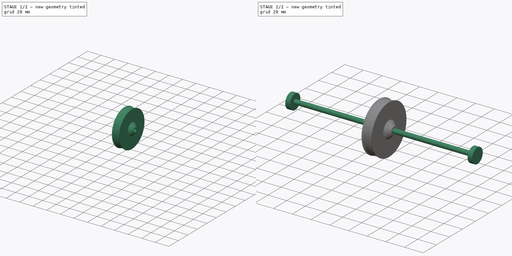
[diagram: build sequence overview — one tinted view per stage of 2, left to right]
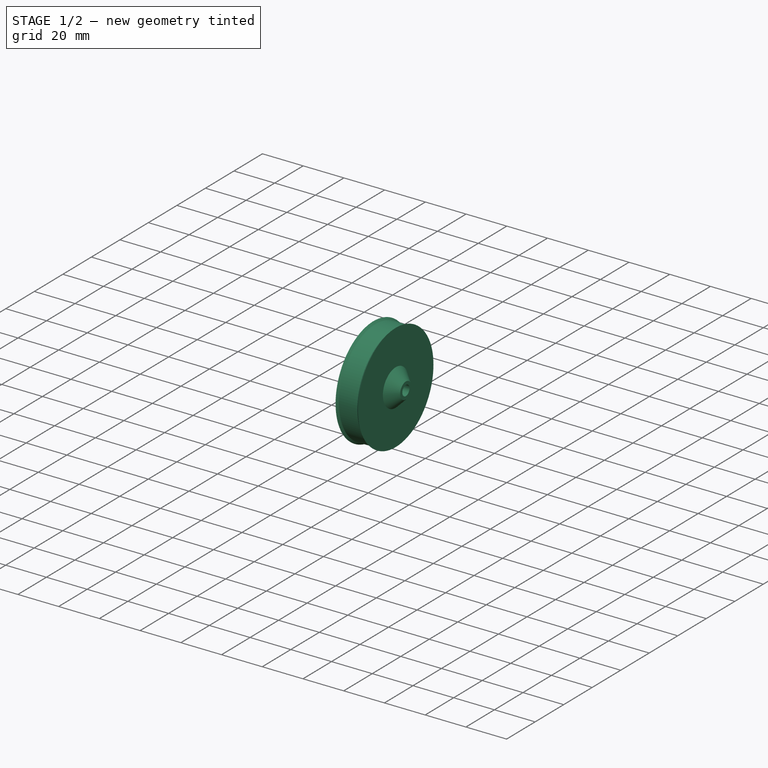
[diagram: stage 1 of 2 — iso view after this stage's code; geometry added in this stage tinted green]
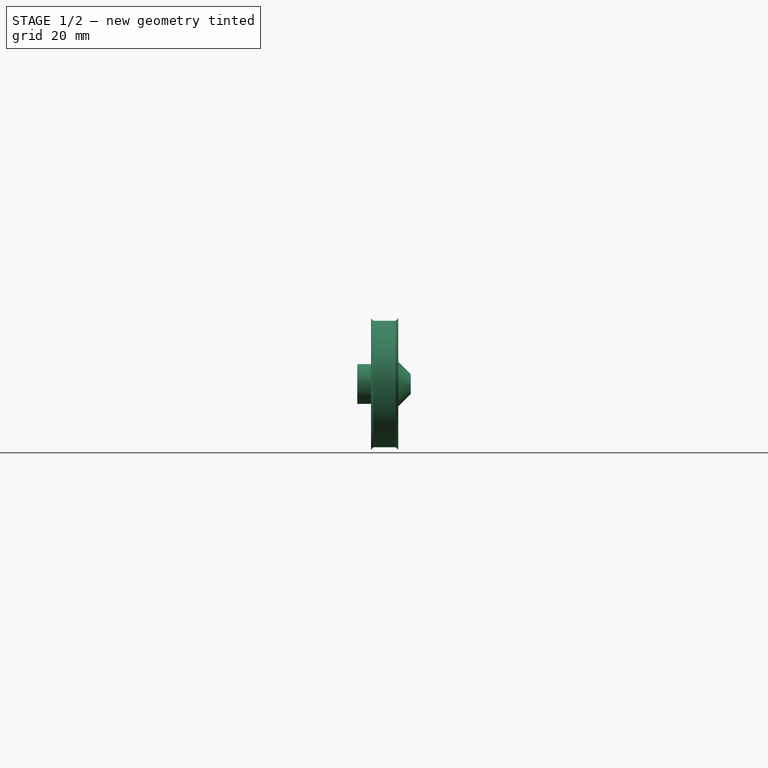
[diagram: stage 1 of 2 — front view after this stage's code; geometry added in this stage tinted green]
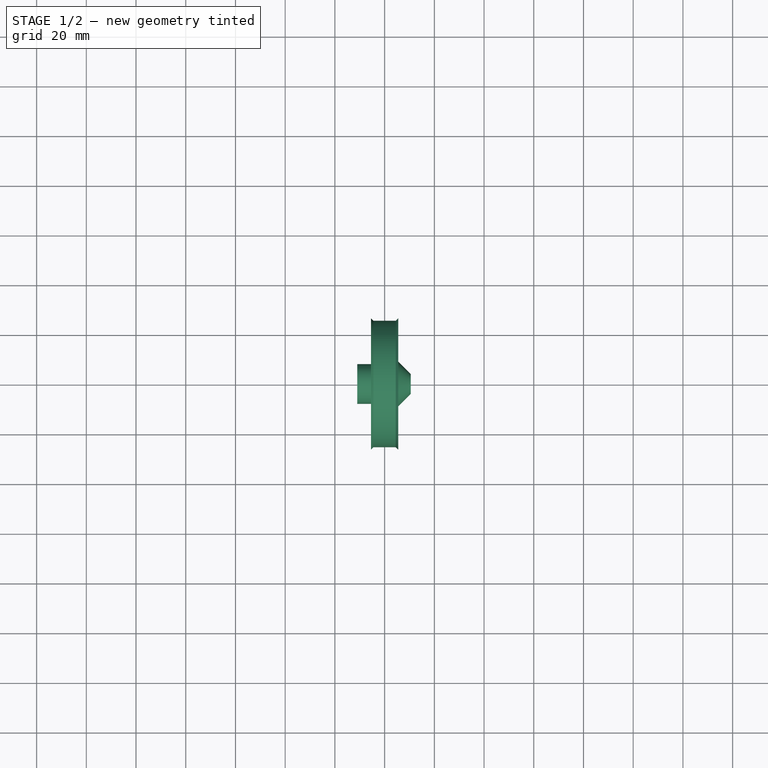
[diagram: stage 1 of 2 — top view after this stage's code; geometry added in this stage tinted green]
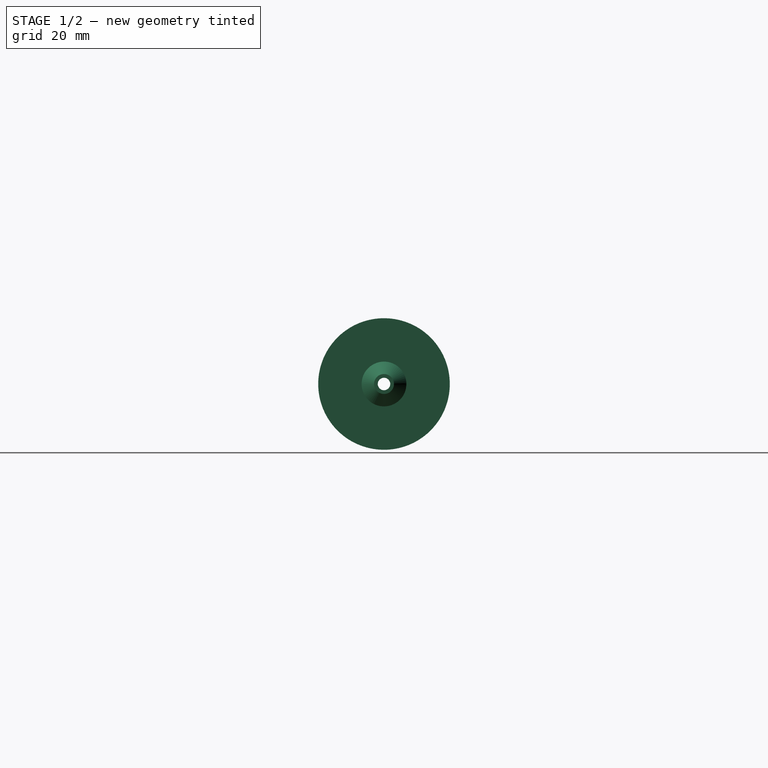
[diagram: stage 1 of 2 — right view after this stage's code; geometry added in this stage tinted green]
FCSTD DOCUMENT  (FreeCAD 0.20R29177 (Git))
Label: miniXY-ZDrive
License: All rights reserved
LicenseURL: http://en.wikipedia.org/wiki/All_rights_reserved
objects: App::Part×4, App::Link×4, App::DocumentObjectGroup×3, Sketcher::SketchObject×3, PartDesign::Revolution×3, PartDesign::Body×3, PartDesign::CoordinateSystem×1, App::FeaturePython×1
note: 13 computed .brp shape members not serialized (recipe doc carries the construction recipe); baked Part::Feature solids carry a one-line shape summary decoded from their .brp

FEATURE [PartDesign::CoordinateSystem] LCS_Origin
  AttacherType = Attacher::AttachEngine3D
  MapMode = 2
  Support = -> [X_Axis]
FEATURE [App::DocumentObjectGroup] Constraints
FEATURE [App::FeaturePython] Variables  # WARN: FeaturePython — macro-defined, semantics opaque (R4)
  DriveShaftLength = 200
  Pully80TPosition = 60
  PullyDriveDiameter = 12.73
  PullyDrivePosition = 83.5
  Type = App::PropertyContainer
FEATURE [App::DocumentObjectGroup] Configurations
FEATURE [Sketcher::SketchObject] Sketch
  FullyConstrained = true
  MapMode = 5
  Support = -> [XY_Plane004]
  expr: Constraints[21] = -50.93 / 2
  sketch-geometry (10):
    g0: LineSegment StartX=-11 StartY=-2.5 StartZ=0 EndX=-11 EndY=-8 EndZ=0
    g1: LineSegment StartX=-11 StartY=-8 StartZ=0 EndX=-5.5 EndY=-8 EndZ=0
    g2: LineSegment StartX=-5.5 StartY=-8 StartZ=0 EndX=-5.5 EndY=-26.465 EndZ=0
    g3: LineSegment StartX=-5.5 StartY=-26.465 StartZ=0 EndX=-4.5 EndY=-25.465 EndZ=0
    g4: LineSegment StartX=-4.5 StartY=-25.465 StartZ=0 EndX=4.5 EndY=-25.465 EndZ=0
    g5: LineSegment StartX=4.5 StartY=-25.465 StartZ=0 EndX=5.5 EndY=-26.465 EndZ=0
    g6: LineSegment StartX=5.5 StartY=-26.465 StartZ=0 EndX=5.5 EndY=-9 EndZ=0
    g7: LineSegment StartX=5.5 StartY=-9 StartZ=0 EndX=10.5 EndY=-4 EndZ=0
    g8: LineSegment StartX=10.5 StartY=-4 StartZ=0 EndX=10.5 EndY=-2.5 EndZ=0
    g9: LineSegment StartX=10.5 StartY=-2.5 StartZ=0 EndX=-11 EndY=-2.5 EndZ=0
  constraints (28):
    c: Vertical(g0)
    c: Coincident(g0,g1)
    c: Coincident(g1,g2)
    c: Vertical(g2)
    c: Coincident(g2,g3)
    c: Coincident(g3,g4)
    c: Coincident(g4,g5)
    c: Coincident(g5,g6)
    c: Coincident(g6,g7)
    c: Coincident(g7,g8)
    c: Coincident(g8,g9)
    c: Coincident(g9,g0)
    c: Horizontal(g9)
    c: Angle(g3) = 0.785398
    c: Parallel(g3,g7)
    c: Vertical(g6)
    c: Vertical(g8)
    c: Symmetric(g3,g4,g-2)
    c: DistanceX(g4,g4) = 9
    c: Symmetric(g2,g5,g-2)
    c: DistanceX(g2,g3) = 1
    c: DistanceY(g3) = -25.465
    c: Horizontal(g1)
    c: DistanceY(g0) = -2.5
    c: DistanceX(g1,g1) = 5.5
    c: DistanceY(g0) = -8
    c: DistanceX(g7,g7) = 5
    c: DistanceY(g8,g8) = 1.5
FEATURE [PartDesign::Revolution] Revolution
  Angle = 360
  Axis = (1,0,0)
  Base = (0,0,0)
  Profile = -> Sketch
  ReferenceAxis = -> Sketch [H_Axis]
  Reversed = true
FEATURE [PartDesign::Body] Body002  label="Pully80TBody"
  Group = -> [Sketch,Revolution]
  Origin = -> Origin004
  Tip = -> Revolution
FEATURE [App::Part] Part001  label="Pully80T"
  Group = -> [Body002]
  Origin = -> Origin005
FEATURE [Sketcher::SketchObject] Sketch118
  FullyConstrained = true
  MapMode = 5
  Support = -> [XY_Plane003]
  expr: Constraints[18] = -<<Variables>>.PullyDriveDiameter / 2
  sketch-geometry (8):
    g0: LineSegment StartX=-11 StartY=-2.5 StartZ=0 EndX=-11 EndY=-8 EndZ=0
    g1: LineSegment StartX=-11 StartY=-8 StartZ=0 EndX=-3.5 EndY=-8 EndZ=0
    g2: LineSegment StartX=-3.5 StartY=-8 StartZ=0 EndX=-3.5 EndY=-6.365 EndZ=0
    g3: LineSegment StartX=-3.5 StartY=-6.365 StartZ=0 EndX=3.5 EndY=-6.365 EndZ=0
    g4: LineSegment StartX=3.5 StartY=-6.365 StartZ=0 EndX=3.5 EndY=-8 EndZ=0
    g5: LineSegment StartX=3.5 StartY=-8 StartZ=0 EndX=5 EndY=-8 EndZ=0
    g6: LineSegment StartX=5 StartY=-8 StartZ=0 EndX=5 EndY=-2.5 EndZ=0
    g7: LineSegment StartX=5 StartY=-2.5 StartZ=0 EndX=-11 EndY=-2.5 EndZ=0
  constraints (23):
    c: Vertical(g0)
    c: Coincident(g0,g1)
    c: Horizontal(g1)
    c: Coincident(g1,g2)
    c: Coincident(g2,g3)
    c: Coincident(g3,g4)
    c: Vertical(g4)
    c: Coincident(g4,g5)
    c: Coincident(g5,g6)
    c: Vertical(g6)
    c: Coincident(g6,g7)
    c: Coincident(g7,g0)
    c: Horizontal(g7)
    c: Symmetric(g2,g3,g-2)
    c: Vertical(g2)
    c: DistanceX(g7,g7) = 16
    c: DistanceY(g0) = -2.5
    c: DistanceY(g0) = -8
    c: DistanceY(g2) = -6.365
    c: DistanceX(g5,g5) = 1.5
    c: DistanceX(g1,g1) = 7.5
    c: Horizontal(g5)
    c: DistanceY(g5) = -8
FEATURE [PartDesign::Revolution] Revolution001
  Angle = 360
  Axis = (1,0,0)
  Base = (0,0,0)
  Profile = -> Sketch118
  ReferenceAxis = -> Sketch118 [H_Axis]
  Reversed = true
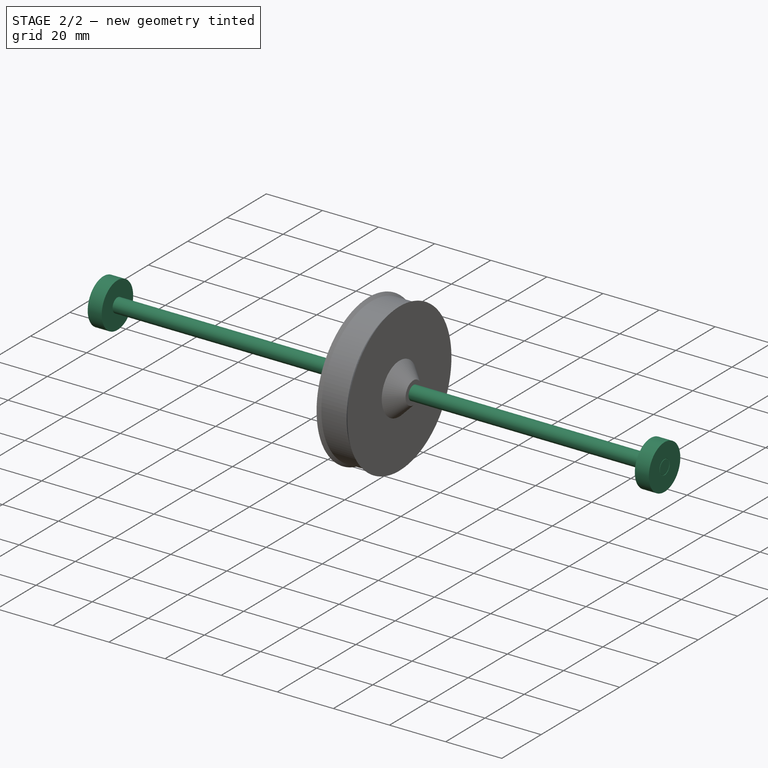
[diagram: stage 2 of 2 — iso view after this stage's code; geometry added in this stage tinted green]
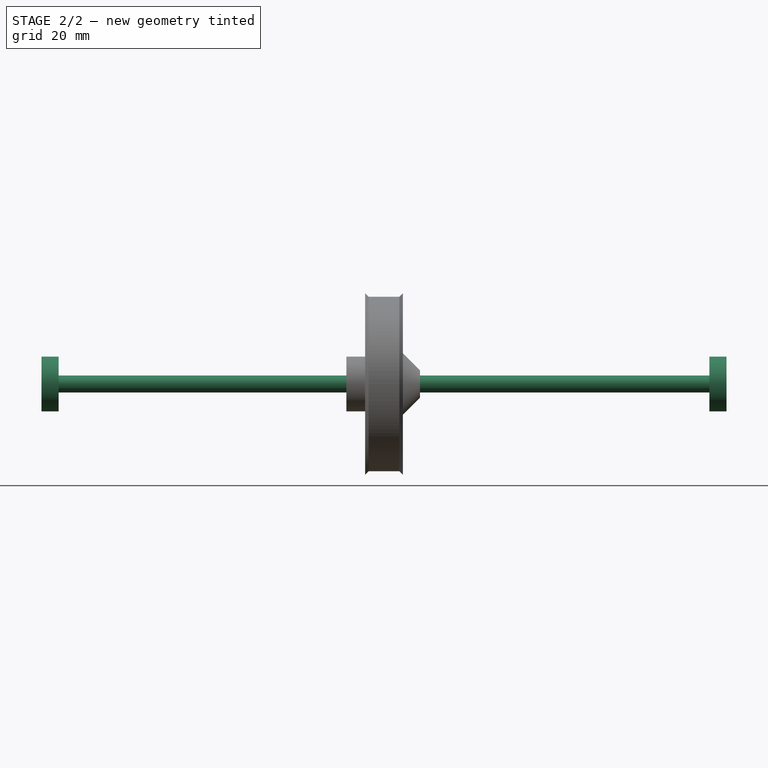
[diagram: stage 2 of 2 — front view after this stage's code; geometry added in this stage tinted green]
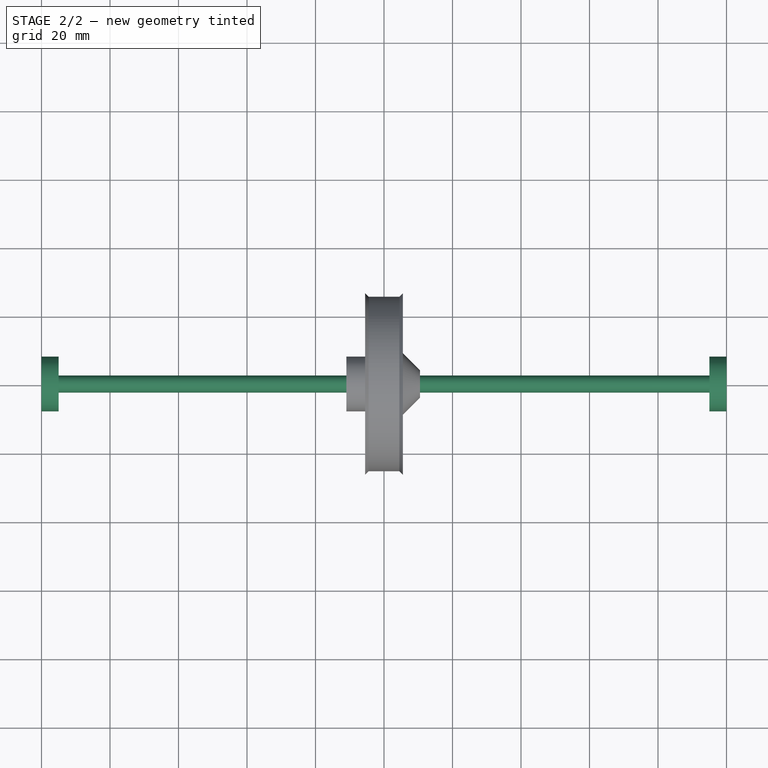
[diagram: stage 2 of 2 — top view after this stage's code; geometry added in this stage tinted green]
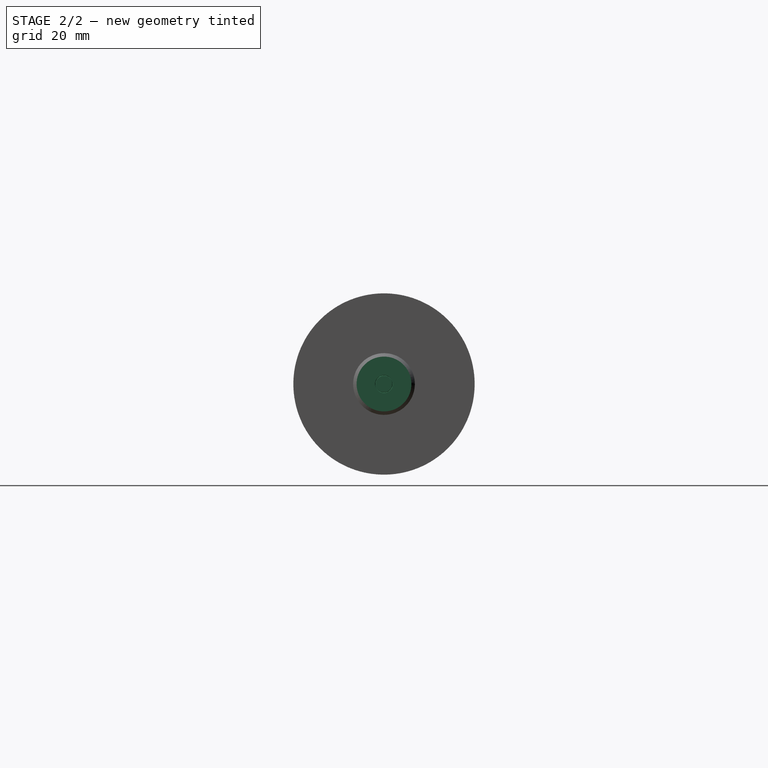
[diagram: stage 2 of 2 — right view after this stage's code; geometry added in this stage tinted green]
FEATURE [PartDesign::Body] Body001  label="PullyDriveBody"
  Group = -> [Sketch118,Revolution001]
  Origin = -> Origin003
  Tip = -> Revolution001
FEATURE [App::Part] Part002  label="PullyDrive"
  Group = -> [Body001]
  Origin = -> Origin006
FEATURE [Sketcher::SketchObject] Sketch119
  FullyConstrained = true
  MapMode = 5
  Support = -> [XY_Plane002]
  expr: Constraints[13] = <<Variables>>.DriveShaftLength
  sketch-geometry (16):
    g0: LineSegment StartX=-100 StartY=-8 StartZ=0 EndX=-95 EndY=-8 EndZ=0
    g1: LineSegment StartX=-95 StartY=-8 StartZ=0 EndX=-95 EndY=-2.5 EndZ=0
    g2: LineSegment StartX=-95 StartY=-2.5 StartZ=0 EndX=95 EndY=-2.5 EndZ=0
    g3: LineSegment StartX=95 StartY=-2.5 StartZ=0 EndX=95 EndY=-8 EndZ=0
    g4: LineSegment StartX=95 StartY=-8 StartZ=0 EndX=100 EndY=-8 EndZ=0
    g5: LineSegment StartX=100 StartY=0 StartZ=0 EndX=-100 EndY=0 EndZ=0
    g6: LineSegment StartX=-100 StartY=-3.5 StartZ=0 EndX=100 EndY=-3.5 EndZ=0
    g7: LineSegment StartX=-100 StartY=-7 StartZ=0 EndX=100 EndY=-7 EndZ=0
    g8: LineSegment StartX=-100 StartY=0 StartZ=0 EndX=-100 EndY=-2.4 EndZ=0
    g9: LineSegment StartX=-100 StartY=-2.4 StartZ=0 EndX=-99.9 EndY=-2.5 EndZ=0
    g10: LineSegment StartX=-99.9 StartY=-2.5 StartZ=0 EndX=-100 EndY=-2.6 EndZ=0
    g11: LineSegment StartX=99.9 StartY=-2.5 StartZ=0 EndX=100 EndY=-2.4 EndZ=0
    g12: LineSegment StartX=100 StartY=-2.4 StartZ=0 EndX=100 EndY=0 EndZ=0
    g13: LineSegment StartX=100 StartY=-8 StartZ=0 EndX=100 EndY=-2.6 EndZ=0
    g14: LineSegment StartX=100 StartY=-2.6 StartZ=0 EndX=99.9 EndY=-2.5 EndZ=0
    g15: LineSegment StartX=-100 StartY=-2.6 StartZ=0 EndX=-100 EndY=-8 EndZ=0
  constraints (40):
    c: Coincident(g0,g1)
    c: Vertical(g1)
    c: Coincident(g1,g2)
    c: Coincident(g2,g3)
    c: Coincident(g3,g4)
    c: Coincident(g4,g13)
    c: Coincident(g12,g5)
    c: Horizontal(g0)
    c: Symmetric(g5,g12,g-2)
    c: Symmetric(g1,g2,g-2)
    c: Symmetric(g0,g3,g-2)
    c: Symmetric(g0,g4,g-2)
    c: PointOnObject(g5,g-1)
    c: DistanceX(g5,g5) = 200
    c: DistanceY(g0) = -8
    c: DistanceY(g1) = -2.5
    c: DistanceX(g0,g0) = 5
    c: Coincident(g8,g5)
    c: Symmetric(g6,g6,g-2)
    c: Symmetric(g7,g7,g-2)
    c: DistanceY(g6,g1) = 1
    c: Coincident(g9,g10)
    c: Coincident(g8,g9)
    c: Vertical(g8)
    c: Coincident(g10,g15)
    c: PointOnObject(g9,g2)
    c: Symmetric(g8,g10,g2)
    c: Angle(g9) = -0.785398
    c: DistanceY(g10,g8) = 0.2
    c: DistanceY(g0,g7) = 1
    c: Coincident(g14,g11)
    c: Coincident(g11,g12)
    c: Coincident(g13,g14)
    c: Symmetric(g11,g9,g-2)
    c: Symmetric(g8,g11,g-2)
    c: Symmetric(g13,g10,g-2)
    c: Vertical(g15)
    c: PointOnObject(g6,g8)
    c: PointOnObject(g7,g8)
    c: Coincident(g15,g0)
FEATURE [PartDesign::Revolution] Revolution002
  Angle = 360
  Axis = (1,0,0)
  Base = (0,0,0)
  Profile = -> Sketch119
  ReferenceAxis = -> Sketch119 [H_Axis]
  Reversed = true
FEATURE [PartDesign::Body] Body  label="ShaftBody"
  Group = -> [Sketch119,Revolution002]
  Origin = -> Origin002
  Tip = -> Revolution002
FEATURE [App::Part] Part  label="DriveShaft"
  Group = -> [Body]
  Origin = -> Origin001
FEATURE [App::DocumentObjectGroup] Parts
  Group = -> [Part,Part001,Part002]
FEATURE [App::Link] DriveShaft  label="DriveShaft001"
  LinkedObject = -> Part
FEATURE [App::Link] PullyDriveLeft
  LinkPlacement = pos=(-83.5,0,0) rot=(0,0,1;0rad)
  LinkedObject = -> Part002
  Placement = pos=(-83.5,0,0) rot=(0,0,1;0rad)
  expr: .Placement.Base.x = -<<Variables>>.PullyDrivePosition
FEATURE [App::Link] PullyDriveRight
  LinkPlacement = pos=(83.5,0,0) rot=(0,0,1;3.14159rad)
  LinkedObject = -> Part002
  Placement = pos=(83.5,0,0) rot=(0,0,1;3.14159rad)
  expr: .Placement.Base.x = <<Variables>>.PullyDrivePosition
FEATURE [App::Link] Pully80T  label="Pully80T001"
  LinkPlacement = pos=(60,0,0) rot=(0,0,1;0rad)
  LinkedObject = -> Part001
  Placement = pos=(60,0,0) rot=(0,0,1;0rad)
  expr: .Placement.Base.x = <<Variables>>.Pully80TPosition
FEATURE [App::Part] Model
  AssemblyType = Part::Link
  Group = -> [LCS_Origin,Constraints,Variables,Configurations,DriveShaft,PullyDriveLeft,PullyDriveRight,Pully80T]
  Origin = -> Origin
  Type = Assembly
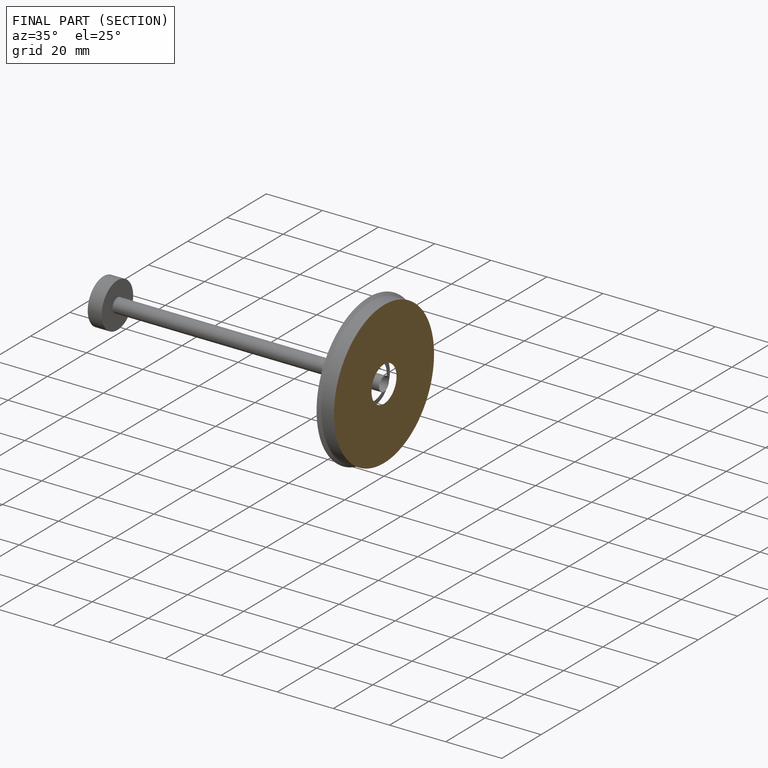
[diagram: finished part — half-section view (interior)]
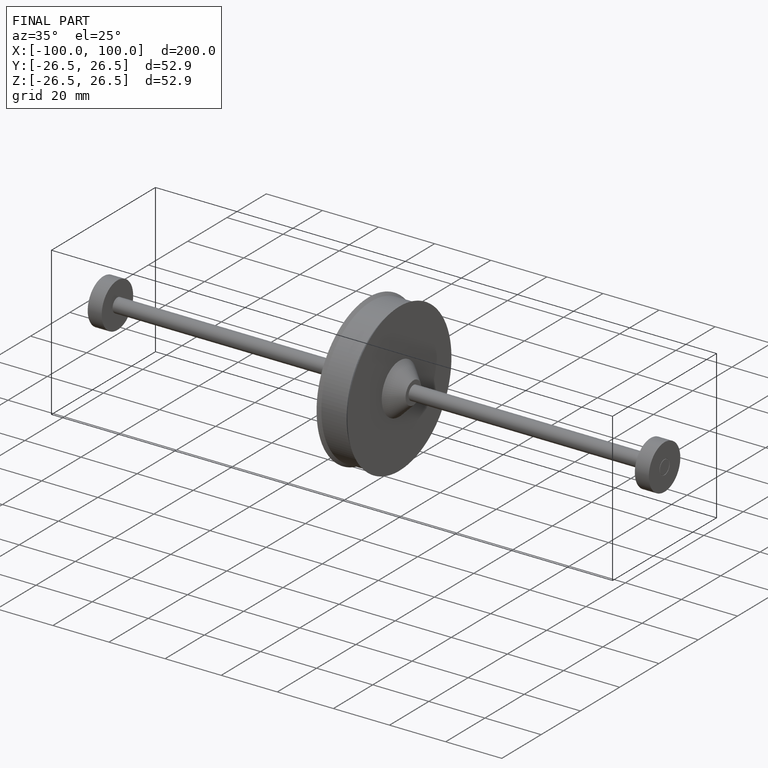
[diagram: finished part — iso view with bounding-box wireframe]
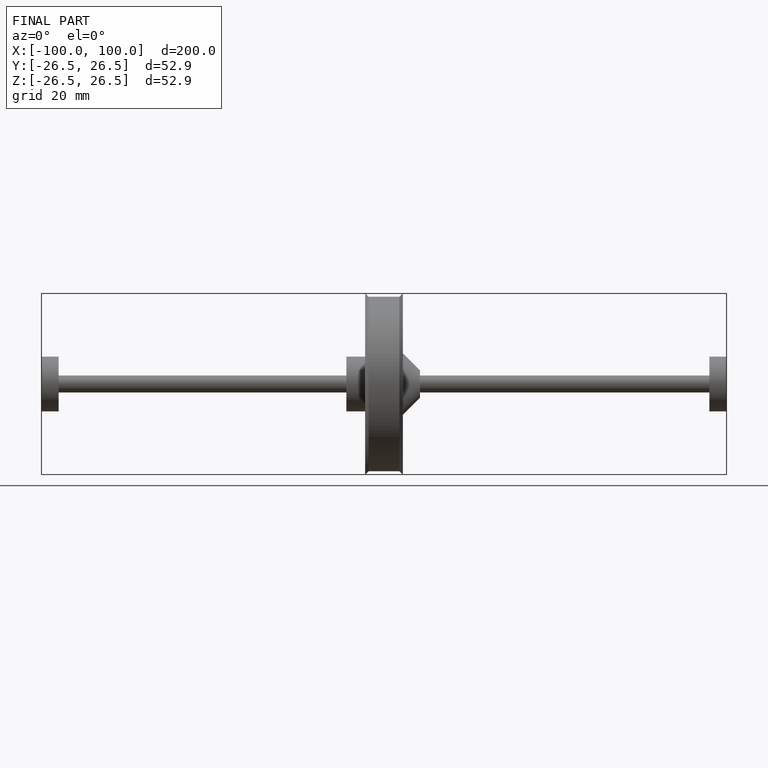
[diagram: finished part — front view with bounding-box wireframe]
